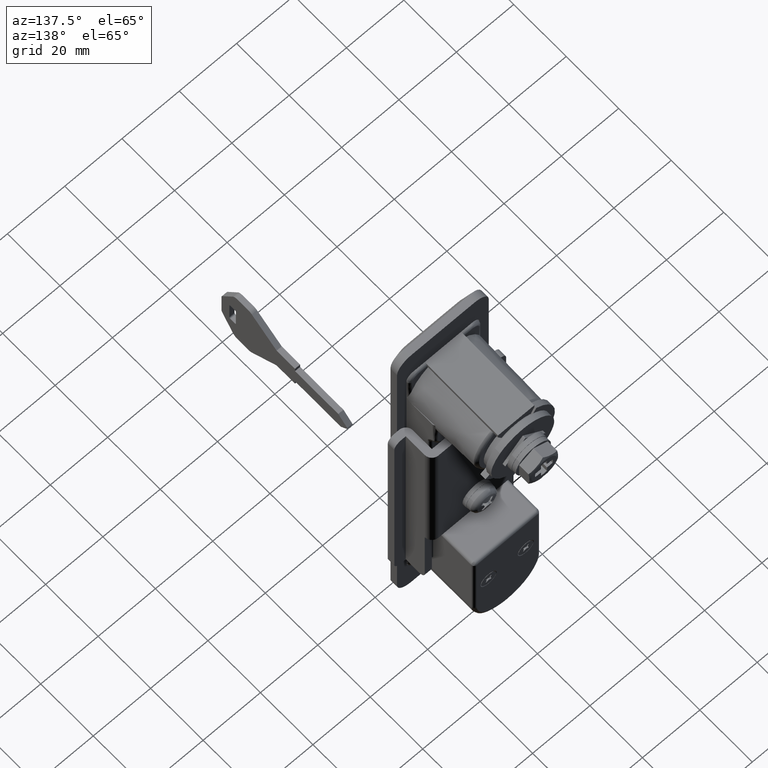
[diagram: clean part render]
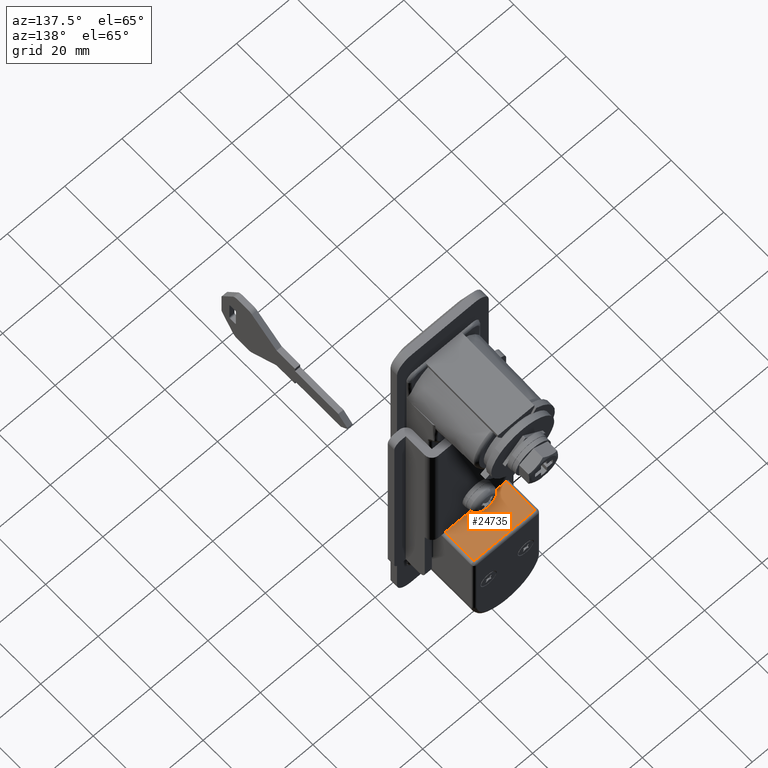
[diagram: same view with one face highlighted and labeled with its STEP entity id]
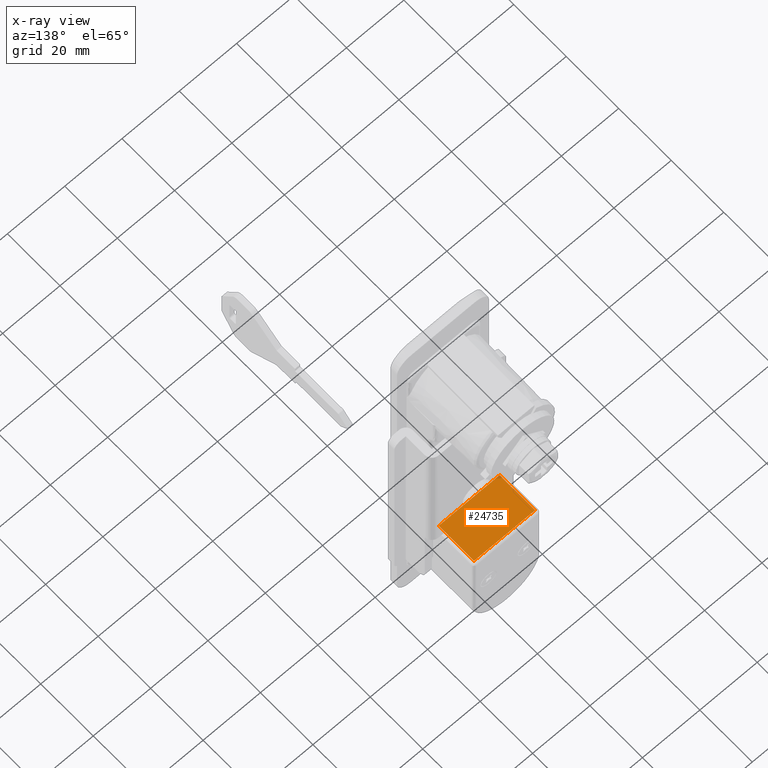
[diagram: x-ray of the same camera — body ghosted, the highlighted face saturated]
A machine part, auxiliary view. The second image highlights one B-rep face of the part: STEP entity #24735.
The next image is the same camera in x-ray: the body ghosted, the highlighted face saturated — about 0% of this face is hidden behind the body in this view.
In plain terms, the highlighted face is a freeform B-spline surface patch.
Its self-contained STEP definition (entity closure, byte-faithful):
#19745=CARTESIAN_POINT('',(14.0,-10.648000000000140,-64.668000000000006));
#19746=VERTEX_POINT('',#19745);
#19836=CARTESIAN_POINT('',(14.0,10.650000000000000,-64.668000000000006));
#19837=VERTEX_POINT('',#19836);
#19856=CARTESIAN_POINT('',(14.0,10.650000000000000,-64.668000000000006));
#19857=CARTESIAN_POINT('',(14.0,-10.648000000000140,-64.668000000000006));
#19858=QUASI_UNIFORM_CURVE('',1,(#19856,#19857),.UNSPECIFIED.,.F.,.U.);
#19859=EDGE_CURVE('',#19837,#19746,#19858,.T.);
#23798=CARTESIAN_POINT('',(27.500000000000000,10.650000000000000,-64.668000000000006));
#23799=VERTEX_POINT('',#23798);
#23837=CARTESIAN_POINT('',(27.500000000000000,-10.648000000000140,-64.668000000000006));
#23838=VERTEX_POINT('',#23837);
#23857=CARTESIAN_POINT('',(27.500000000000000,-10.648000000000140,-64.668000000000006));
#23858=CARTESIAN_POINT('',(27.500000000000000,10.650000000000000,-64.668000000000006));
#23859=QUASI_UNIFORM_CURVE('',1,(#23857,#23858),.UNSPECIFIED.,.F.,.U.);
#23860=EDGE_CURVE('',#23838,#23799,#23859,.T.);
#24709=CARTESIAN_POINT('',(14.0,-10.648000000000140,-64.668000000000006));
#24710=CARTESIAN_POINT('',(27.500000000000000,-10.648000000000140,-64.668000000000006));
#24711=QUASI_UNIFORM_CURVE('',1,(#24709,#24710),.UNSPECIFIED.,.F.,.U.);
#24712=EDGE_CURVE('',#19746,#23838,#24711,.T.);
#24720=CARTESIAN_POINT('',(13.325675026165619,-11.711834782698689,-64.668000000000006));
#24721=CARTESIAN_POINT('',(28.174325335932600,-11.711834782698689,-64.668000000000006));
#24722=CARTESIAN_POINT('',(13.325675026165619,11.713834021022720,-64.668000000000006));
#24723=CARTESIAN_POINT('',(28.174325335932600,11.713834021022720,-64.668000000000006));
#24724=B_SPLINE_SURFACE_WITH_KNOTS('',1,1,((#24720,#24722),(#24721,#24723)),.UNSPECIFIED.,.F.,.F.,.U.,(2,2),(2,2),(0.0,14.848650309766979),(0.0,23.425668803721411),.UNSPECIFIED.);
#24725=CARTESIAN_POINT('',(14.0,10.650000000000000,-64.668000000000006));
#24726=CARTESIAN_POINT('',(27.500000000000000,10.650000000000000,-64.668000000000006));
#24727=QUASI_UNIFORM_CURVE('',1,(#24725,#24726),.UNSPECIFIED.,.F.,.U.);
#24728=EDGE_CURVE('',#19837,#23799,#24727,.T.);
#24729=ORIENTED_EDGE('',*,*,#24728,.F.);
#24730=ORIENTED_EDGE('',*,*,#19859,.T.);
#24731=ORIENTED_EDGE('',*,*,#24712,.T.);
#24732=ORIENTED_EDGE('',*,*,#23860,.T.);
#24733=EDGE_LOOP('',(#24729,#24730,#24731,#24732));
#24734=FACE_OUTER_BOUND('',#24733,.T.);
#24735=ADVANCED_FACE('',(#24734),#24724,.T.);